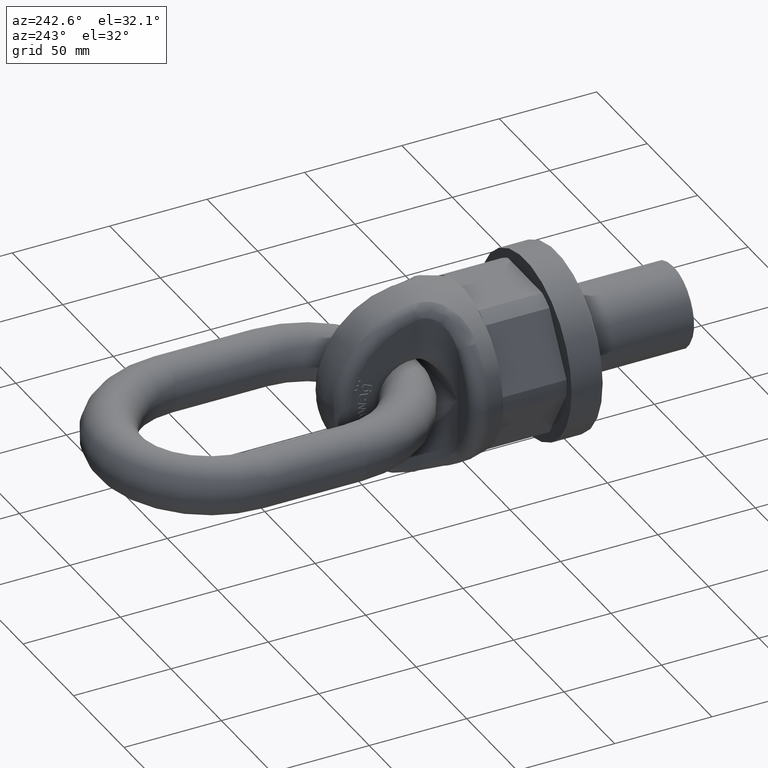
[diagram: clean part render]
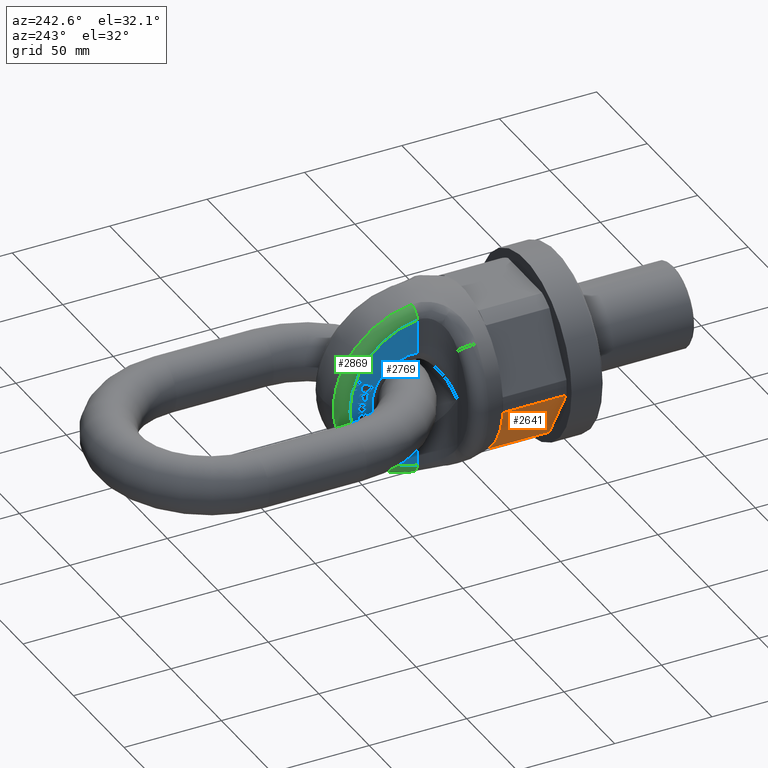
[diagram: same view with three faces highlighted in distinct colors, each labeled with its STEP entity id]
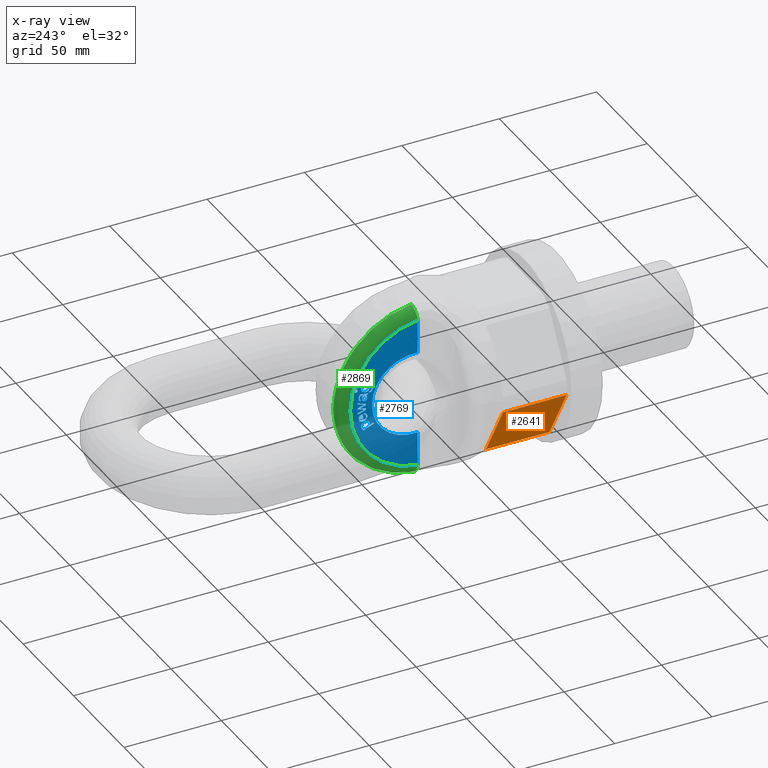
[diagram: x-ray of the same camera — body ghosted, the three highlighted faces saturated]
A machine part, auxiliary view with three faces highlighted in distinct colors.
The next image is the same camera in x-ray (body ghosted, the three faces saturated) — at least one of them is partly hidden behind the body in this view.
Their STEP definitions:

[orange] entity #2641 — the highlighted planar face has unit normal (-0.866, 0, -0.5).
#1799=FACE_OUTER_BOUND('',#3064,.T.);
#2036=LINE('',#6582,#2292);
#2042=LINE('',#6603,#2298);
#2043=LINE('',#6605,#2299);
#2044=LINE('',#6607,#2300);
#2292=VECTOR('',#5820,1.);
#2298=VECTOR('',#5840,1.);
#2299=VECTOR('',#5841,1.);
#2300=VECTOR('',#5842,1.);
#2641=ADVANCED_FACE('',(#1799),#2883,.T.);
#2883=PLANE('',#5610);
#3064=EDGE_LOOP('',(#3364,#3365,#3366,#3367));
#3364=ORIENTED_EDGE('',*,*,#4952,.F.);
#3365=ORIENTED_EDGE('',*,*,#4942,.T.);
#3366=ORIENTED_EDGE('',*,*,#4953,.F.);
#3367=ORIENTED_EDGE('',*,*,#4954,.T.);
#4544=VERTEX_POINT('',#6581);
#4545=VERTEX_POINT('',#6583);
#4553=VERTEX_POINT('',#6604);
#4554=VERTEX_POINT('',#6606);
#4942=EDGE_CURVE('',#4545,#4544,#2036,.T.);
#4952=EDGE_CURVE('',#4545,#4553,#2042,.T.);
#4953=EDGE_CURVE('',#4554,#4544,#2043,.T.);
#4954=EDGE_CURVE('',#4554,#4553,#2044,.T.);
#5610=AXIS2_PLACEMENT_3D('',#6608,#5843,#5844);
#5820=DIRECTION('',(-0.499999999999999,-2.40555621261087E-17,0.866025403784439));
#5840=DIRECTION('',(-2.4492935982947E-17,1.,0.));
#5841=DIRECTION('',(2.4492935982947E-17,-1.,0.));
#5842=DIRECTION('',(0.499999999999999,0.,-0.866025403784439));
#5843=DIRECTION('',(-0.866025403784439,0.,-0.499999999999999));
#5844=DIRECTION('',(-0.499999999999999,0.,0.866025403784439));
#6581=CARTESIAN_POINT('',(-40.9307959284594,16.3333333333333,-4.10578185767495));
#6582=CARTESIAN_POINT('',(-20.9759526419165,16.3333333333333,-38.668584287042));
#6583=CARTESIAN_POINT('',(-24.0211093553735,16.3333333333333,-33.394218142325));
#6603=CARTESIAN_POINT('',(-24.0211093553735,2.07083935363145E-16,-33.394218142325));
#6604=CARTESIAN_POINT('',(-24.0211093553735,49.,-33.394218142325));
#6605=CARTESIAN_POINT('',(-40.9307959284594,-2.07083935363145E-16,-4.10578185767495));
#6606=CARTESIAN_POINT('',(-40.9307959284594,49.,-4.10578185767492));
#6607=CARTESIAN_POINT('',(-43.3012701892219,49.,0.));
#6608=CARTESIAN_POINT('',(-43.3012701892219,49.,0.));

[blue] entity #2769 — the highlighted planar face has unit normal (-1, -0, -0).
#497=B_SPLINE_CURVE_WITH_KNOTS('',3,(#8258,#8259,#8260,#8261,#8262,#8263),
 .UNSPECIFIED.,.F.,.F.,(4,2,4),(0.,0.670501232539027,1.),.UNSPECIFIED.);
#498=B_SPLINE_CURVE_WITH_KNOTS('',3,(#8265,#8266,#8267,#8268),
 .UNSPECIFIED.,.F.,.F.,(4,4),(0.,1.),.UNSPECIFIED.);
#499=B_SPLINE_CURVE_WITH_KNOTS('',3,(#8270,#8271,#8272,#8273,#8274,#8275),
 .UNSPECIFIED.,.F.,.F.,(4,2,4),(0.,0.470198675496688,1.),.UNSPECIFIED.);
#500=B_SPLINE_CURVE_WITH_KNOTS('',3,(#8277,#8278,#8279,#8280),
 .UNSPECIFIED.,.F.,.F.,(4,4),(0.,1.),.UNSPECIFIED.);
#501=B_SPLINE_CURVE_WITH_KNOTS('',3,(#8284,#8285,#8286,#8287),
 .UNSPECIFIED.,.F.,.F.,(4,4),(0.,1.),.UNSPECIFIED.);
#502=B_SPLINE_CURVE_WITH_KNOTS('',3,(#8289,#8290,#8291,#8292,#8293,#8294),
 .UNSPECIFIED.,.F.,.F.,(4,2,4),(0.,0.444196428571434,1.),.UNSPECIFIED.);
#503=B_SPLINE_CURVE_WITH_KNOTS('',3,(#8296,#8297,#8298,#8299,#8300,#8301),
 .UNSPECIFIED.,.F.,.F.,(4,2,4),(0.,0.500000000000002,1.),.UNSPECIFIED.);
#504=B_SPLINE_CURVE_WITH_KNOTS('',3,(#8303,#8304,#8305,#8306,#8307,#8308,
#8309,#8310,#8311,#8312,#8313,#8314,#8315,#8316),.UNSPECIFIED.,.F.,.F.,
(4,2,2,2,2,2,4),(0.,0.149537296690975,0.323681996634893,0.497826696578807,
0.672812675266412,0.847798653954013,1.),.UNSPECIFIED.);
#505=B_SPLINE_CURVE_WITH_KNOTS('',3,(#8321,#8322,#8323,#8324),
 .UNSPECIFIED.,.F.,.F.,(4,4),(0.,1.),.UNSPECIFIED.);
#506=B_SPLINE_CURVE_WITH_KNOTS('',3,(#8329,#8330,#8331,#8332),
 .UNSPECIFIED.,.F.,.F.,(4,4),(0.,1.),.UNSPECIFIED.);
#507=B_SPLINE_CURVE_WITH_KNOTS('',3,(#8334,#8335,#8336,#8337,#8338,#8339),
 .UNSPECIFIED.,.F.,.F.,(4,2,4),(0.,0.565320665083134,1.),.UNSPECIFIED.);
#508=B_SPLINE_CURVE_WITH_KNOTS('',3,(#8341,#8342,#8343,#8344),
 .UNSPECIFIED.,.F.,.F.,(4,4),(0.,1.),.UNSPECIFIED.);
#509=B_SPLINE_CURVE_WITH_KNOTS('',3,(#8348,#8349,#8350,#8351),
 .UNSPECIFIED.,.F.,.F.,(4,4),(0.,1.),.UNSPECIFIED.);
#510=B_SPLINE_CURVE_WITH_KNOTS('',3,(#8353,#8354,#8355,#8356,#8357,#8358),
 .UNSPECIFIED.,.F.,.F.,(4,2,4),(0.,0.429530201342282,1.),.UNSPECIFIED.);
#511=B_SPLINE_CURVE_WITH_KNOTS('',3,(#8360,#8361,#8362,#8363,#8364,#8365,
#8366,#8367,#8368,#8369,#8370,#8371),.UNSPECIFIED.,.F.,.F.,(4,2,2,2,2,4),
(0.,0.253866185683641,0.504362466247586,0.754858746811531,0.877429373405765,
1.),.UNSPECIFIED.);
#512=B_SPLINE_CURVE_WITH_KNOTS('',3,(#8395,#8396,#8397,#8398),
 .UNSPECIFIED.,.F.,.F.,(4,4),(0.,1.),.UNSPECIFIED.);
#513=B_SPLINE_CURVE_WITH_KNOTS('',3,(#8400,#8401,#8402,#8403),
 .UNSPECIFIED.,.F.,.F.,(4,4),(0.,1.),.UNSPECIFIED.);
#514=B_SPLINE_CURVE_WITH_KNOTS('',3,(#8425,#8426,#8427,#8428),
 .UNSPECIFIED.,.F.,.F.,(4,4),(0.,1.),.UNSPECIFIED.);
#515=B_SPLINE_CURVE_WITH_KNOTS('',3,(#8433,#8434,#8435,#8436),
 .UNSPECIFIED.,.F.,.F.,(4,4),(0.,1.),.UNSPECIFIED.);
#516=B_SPLINE_CURVE_WITH_KNOTS('',3,(#8441,#8442,#8443,#8444),
 .UNSPECIFIED.,.F.,.F.,(4,4),(0.,1.),.UNSPECIFIED.);
#517=B_SPLINE_CURVE_WITH_KNOTS('',3,(#8446,#8447,#8448,#8449,#8450,#8451,
#8452,#8453,#8454,#8455),.UNSPECIFIED.,.F.,.F.,(4,2,2,2,4),(0.,0.296954694318532,
0.533565653962708,0.771641518085911,1.),.UNSPECIFIED.);
#518=B_SPLINE_CURVE_WITH_KNOTS('',3,(#8457,#8458,#8459,#8460),
 .UNSPECIFIED.,.F.,.F.,(4,4),(0.,1.),.UNSPECIFIED.);
#519=B_SPLINE_CURVE_WITH_KNOTS('',3,(#8464,#8465,#8466,#8467),
 .UNSPECIFIED.,.F.,.F.,(4,4),(0.,1.),.UNSPECIFIED.);
#520=B_SPLINE_CURVE_WITH_KNOTS('',3,(#8469,#8470,#8471,#8472),
 .UNSPECIFIED.,.F.,.F.,(4,4),(0.,1.),.UNSPECIFIED.);
#521=B_SPLINE_CURVE_WITH_KNOTS('',3,(#8474,#8475,#8476,#8477),
 .UNSPECIFIED.,.F.,.F.,(4,4),(0.,1.),.UNSPECIFIED.);
#522=B_SPLINE_CURVE_WITH_KNOTS('',3,(#8479,#8480,#8481,#8482),
 .UNSPECIFIED.,.F.,.F.,(4,4),(0.,1.),.UNSPECIFIED.);
#523=B_SPLINE_CURVE_WITH_KNOTS('',3,(#8484,#8485,#8486,#8487,#8488,#8489),
 .UNSPECIFIED.,.F.,.F.,(4,2,4),(0.,0.440217391304352,1.),.UNSPECIFIED.);
#524=B_SPLINE_CURVE_WITH_KNOTS('',3,(#8491,#8492,#8493,#8494),
 .UNSPECIFIED.,.F.,.F.,(4,4),(0.,1.),.UNSPECIFIED.);
#525=B_SPLINE_CURVE_WITH_KNOTS('',3,(#8498,#8499,#8500,#8501),
 .UNSPECIFIED.,.F.,.F.,(4,4),(0.,1.),.UNSPECIFIED.);
#526=B_SPLINE_CURVE_WITH_KNOTS('',3,(#8503,#8504,#8505,#8506,#8507,#8508),
 .UNSPECIFIED.,.F.,.F.,(4,2,4),(0.,0.52387640449438,1.),.UNSPECIFIED.);
#527=B_SPLINE_CURVE_WITH_KNOTS('',3,(#8510,#8511,#8512,#8513),
 .UNSPECIFIED.,.F.,.F.,(4,4),(0.,1.),.UNSPECIFIED.);
#528=B_SPLINE_CURVE_WITH_KNOTS('',3,(#8515,#8516,#8517,#8518,#8519,#8520,
#8521,#8522),.UNSPECIFIED.,.F.,.F.,(4,2,2,4),(0.,0.269230769230754,0.527644230769219,
1.),.UNSPECIFIED.);
#529=B_SPLINE_CURVE_WITH_KNOTS('',3,(#8526,#8527,#8528,#8529),
 .UNSPECIFIED.,.F.,.F.,(4,4),(0.,1.),.UNSPECIFIED.);
#530=B_SPLINE_CURVE_WITH_KNOTS('',3,(#8531,#8532,#8533,#8534),
 .UNSPECIFIED.,.F.,.F.,(4,4),(0.,1.),.UNSPECIFIED.);
#531=B_SPLINE_CURVE_WITH_KNOTS('',3,(#8536,#8537,#8538,#8539,#8540,#8541,
#8542,#8543,#8544,#8545),.UNSPECIFIED.,.F.,.F.,(4,2,2,2,4),(0.,0.245990994549334,
0.507925849856492,0.76986070516365,1.),.UNSPECIFIED.);
#2173=LINE('',#8255,#2475);
#2174=LINE('',#8282,#2476);
#2175=LINE('',#8318,#2477);
#2176=LINE('',#8320,#2478);
#2177=LINE('',#8327,#2479);
#2178=LINE('',#8346,#2480);
#2179=LINE('',#8378,#2481);
#2180=LINE('',#8383,#2482);
#2181=LINE('',#8386,#2483);
#2182=LINE('',#8389,#2484);
#2183=LINE('',#8391,#2485);
#2184=LINE('',#8393,#2486);
#2185=LINE('',#8405,#2487);
#2186=LINE('',#8407,#2488);
#2187=LINE('',#8409,#2489);
#2188=LINE('',#8411,#2490);
#2189=LINE('',#8413,#2491);
#2190=LINE('',#8415,#2492);
#2191=LINE('',#8417,#2493);
#2192=LINE('',#8419,#2494);
#2193=LINE('',#8421,#2495);
#2194=LINE('',#8423,#2496);
#2195=LINE('',#8430,#2497);
#2196=LINE('',#8432,#2498);
#2197=LINE('',#8439,#2499);
#2198=LINE('',#8462,#2500);
#2199=LINE('',#8496,#2501);
#2200=LINE('',#8523,#2502);
#2201=LINE('',#8547,#2503);
#2202=LINE('',#8549,#2504);
#2203=LINE('',#8551,#2505);
#2204=LINE('',#8553,#2506);
#2205=LINE('',#8555,#2507);
#2206=LINE('',#8557,#2508);
#2475=VECTOR('',#6239,1.);
#2476=VECTOR('',#6240,1.);
#2477=VECTOR('',#6241,1.);
#2478=VECTOR('',#6242,1.);
#2479=VECTOR('',#6243,1.);
#2480=VECTOR('',#6244,1.);
#2481=VECTOR('',#6251,1.);
#2482=VECTOR('',#6254,1.);
#2483=VECTOR('',#6257,1.);
#2484=VECTOR('',#6258,1.);
#2485=VECTOR('',#6259,1.);
#2486=VECTOR('',#6260,1.);
#2487=VECTOR('',#6261,1.);
#2488=VECTOR('',#6262,1.);
#2489=VECTOR('',#6263,1.);
#2490=VECTOR('',#6264,1.);
#2491=VECTOR('',#6265,1.);
#2492=VECTOR('',#6266,1.);
#2493=VECTOR('',#6267,1.);
#2494=VECTOR('',#6268,1.);
#2495=VECTOR('',#6269,1.);
#2496=VECTOR('',#6270,1.);
#2497=VECTOR('',#6271,1.);
#2498=VECTOR('',#6272,1.);
#2499=VECTOR('',#6273,1.);
#2500=VECTOR('',#6274,1.);
#2501=VECTOR('',#6275,1.);
#2502=VECTOR('',#6276,1.);
#2503=VECTOR('',#6277,1.);
#2504=VECTOR('',#6278,1.);
#2505=VECTOR('',#6279,1.);
#2506=VECTOR('',#6280,1.);
#2507=VECTOR('',#6281,1.);
#2508=VECTOR('',#6282,1.);
#2769=ADVANCED_FACE('',(#3026,#3027,#3028,#3029,#3030,#3031,#3032,#3033,
#3034),#2938,.T.);
#2938=PLANE('',#5726);
#3026=FACE_BOUND('',#3213,.T.);
#3027=FACE_BOUND('',#3214,.T.);
#3028=FACE_BOUND('',#3215,.T.);
#3029=FACE_BOUND('',#3216,.T.);
#3030=FACE_BOUND('',#3217,.T.);
#3031=FACE_BOUND('',#3218,.T.);
#3032=FACE_BOUND('',#3219,.T.);
#3033=FACE_BOUND('',#3220,.T.);
#3034=FACE_BOUND('',#3221,.T.);
#3213=EDGE_LOOP('',(#3990,#3991,#3992,#3993,#3994,#3995,#3996,#3997,#3998,
#3999,#4000,#4001));
#3214=EDGE_LOOP('',(#4002,#4003,#4004,#4005,#4006,#4007,#4008,#4009,#4010));
#3215=EDGE_LOOP('',(#4011));
#3216=EDGE_LOOP('',(#4012));
#3217=EDGE_LOOP('',(#4013));
#3218=EDGE_LOOP('',(#4014,#4015,#4016,#4017));
#3219=EDGE_LOOP('',(#4018,#4019,#4020,#4021,#4022,#4023,#4024,#4025,#4026,
#4027,#4028,#4029,#4030,#4031,#4032,#4033,#4034,#4035,#4036));
#3220=EDGE_LOOP('',(#4037,#4038,#4039,#4040,#4041,#4042,#4043,#4044,#4045,
#4046,#4047,#4048,#4049,#4050,#4051,#4052,#4053));
#3221=EDGE_LOOP('',(#4054,#4055,#4056,#4057,#4058,#4059,#4060,#4061,#4062,
#4063));
#3990=ORIENTED_EDGE('',*,*,#5261,.T.);
#3991=ORIENTED_EDGE('',*,*,#5262,.T.);
#3992=ORIENTED_EDGE('',*,*,#5263,.T.);
#3993=ORIENTED_EDGE('',*,*,#5264,.T.);
#3994=ORIENTED_EDGE('',*,*,#5265,.T.);
#3995=ORIENTED_EDGE('',*,*,#5266,.T.);
#3996=ORIENTED_EDGE('',*,*,#5267,.T.);
#3997=ORIENTED_EDGE('',*,*,#5268,.T.);
#3998=ORIENTED_EDGE('',*,*,#5269,.T.);
#3999=ORIENTED_EDGE('',*,*,#5270,.T.);
#4000=ORIENTED_EDGE('',*,*,#5271,.T.);
#4001=ORIENTED_EDGE('',*,*,#5272,.T.);
#4002=ORIENTED_EDGE('',*,*,#5273,.T.);
#4003=ORIENTED_EDGE('',*,*,#5274,.T.);
#4004=ORIENTED_EDGE('',*,*,#5275,.T.);
#4005=ORIENTED_EDGE('',*,*,#5276,.T.);
#4006=ORIENTED_EDGE('',*,*,#5277,.T.);
#4007=ORIENTED_EDGE('',*,*,#5278,.T.);
#4008=ORIENTED_EDGE('',*,*,#5279,.T.);
#4009=ORIENTED_EDGE('',*,*,#5280,.T.);
#4010=ORIENTED_EDGE('',*,*,#5281,.T.);
#4011=ORIENTED_EDGE('',*,*,#5282,.T.);
#4012=ORIENTED_EDGE('',*,*,#5283,.T.);
#4013=ORIENTED_EDGE('',*,*,#5284,.T.);
#4014=ORIENTED_EDGE('',*,*,#5285,.T.);
#4015=ORIENTED_EDGE('',*,*,#5286,.T.);
#4016=ORIENTED_EDGE('',*,*,#5287,.T.);
#4017=ORIENTED_EDGE('',*,*,#5288,.T.);
#4018=ORIENTED_EDGE('',*,*,#5289,.T.);
#4019=ORIENTED_EDGE('',*,*,#5290,.T.);
#4020=ORIENTED_EDGE('',*,*,#5291,.T.);
#4021=ORIENTED_EDGE('',*,*,#5292,.T.);
#4022=ORIENTED_EDGE('',*,*,#5293,.T.);
#4023=ORIENTED_EDGE('',*,*,#5294,.T.);
#4024=ORIENTED_EDGE('',*,*,#5295,.T.);
#4025=ORIENTED_EDGE('',*,*,#5296,.T.);
#4026=ORIENTED_EDGE('',*,*,#5297,.T.);
#4027=ORIENTED_EDGE('',*,*,#5298,.T.);
#4028=ORIENTED_EDGE('',*,*,#5299,.T.);
#4029=ORIENTED_EDGE('',*,*,#5300,.T.);
#4030=ORIENTED_EDGE('',*,*,#5301,.T.);
#4031=ORIENTED_EDGE('',*,*,#5302,.T.);
#4032=ORIENTED_EDGE('',*,*,#5303,.T.);
#4033=ORIENTED_EDGE('',*,*,#5304,.T.);
#4034=ORIENTED_EDGE('',*,*,#5305,.T.);
#4035=ORIENTED_EDGE('',*,*,#5306,.T.);
#4036=ORIENTED_EDGE('',*,*,#5307,.T.);
#4037=ORIENTED_EDGE('',*,*,#5308,.T.);
#4038=ORIENTED_EDGE('',*,*,#5309,.T.);
#4039=ORIENTED_EDGE('',*,*,#5310,.T.);
#4040=ORIENTED_EDGE('',*,*,#5311,.T.);
#4041=ORIENTED_EDGE('',*,*,#5312,.T.);
#4042=ORIENTED_EDGE('',*,*,#5313,.T.);
#4043=ORIENTED_EDGE('',*,*,#5314,.T.);
#4044=ORIENTED_EDGE('',*,*,#5315,.T.);
#4045=ORIENTED_EDGE('',*,*,#5316,.T.);
#4046=ORIENTED_EDGE('',*,*,#5317,.T.);
#4047=ORIENTED_EDGE('',*,*,#5318,.T.);
#4048=ORIENTED_EDGE('',*,*,#5319,.T.);
#4049=ORIENTED_EDGE('',*,*,#5320,.T.);
#4050=ORIENTED_EDGE('',*,*,#5321,.T.);
#4051=ORIENTED_EDGE('',*,*,#5322,.T.);
#4052=ORIENTED_EDGE('',*,*,#5323,.T.);
#4053=ORIENTED_EDGE('',*,*,#5324,.T.);
#4054=ORIENTED_EDGE('',*,*,#5325,.T.);
#4055=ORIENTED_EDGE('',*,*,#5326,.T.);
#4056=ORIENTED_EDGE('',*,*,#5327,.T.);
#4057=ORIENTED_EDGE('',*,*,#5328,.T.);
#4058=ORIENTED_EDGE('',*,*,#5329,.T.);
#4059=ORIENTED_EDGE('',*,*,#5330,.T.);
#4060=ORIENTED_EDGE('',*,*,#5331,.T.);
#4061=ORIENTED_EDGE('',*,*,#5332,.T.);
#4062=ORIENTED_EDGE('',*,*,#5333,.T.);
#4063=ORIENTED_EDGE('',*,*,#5334,.T.);
#4757=VERTEX_POINT('',#8256);
#4758=VERTEX_POINT('',#8257);
#4759=VERTEX_POINT('',#8264);
#4760=VERTEX_POINT('',#8269);
#4761=VERTEX_POINT('',#8276);
#4762=VERTEX_POINT('',#8281);
#4763=VERTEX_POINT('',#8283);
#4764=VERTEX_POINT('',#8288);
#4765=VERTEX_POINT('',#8295);
#4766=VERTEX_POINT('',#8302);
#4767=VERTEX_POINT('',#8317);
#4768=VERTEX_POINT('',#8319);
#4769=VERTEX_POINT('',#8325);
#4770=VERTEX_POINT('',#8326);
#4771=VERTEX_POINT('',#8328);
#4772=VERTEX_POINT('',#8333);
#4773=VERTEX_POINT('',#8340);
#4774=VERTEX_POINT('',#8345);
#4775=VERTEX_POINT('',#8347);
#4776=VERTEX_POINT('',#8352);
#4777=VERTEX_POINT('',#8359);
#4778=VERTEX_POINT('',#8373);
#4779=VERTEX_POINT('',#8375);
#4780=VERTEX_POINT('',#8377);
#4781=VERTEX_POINT('',#8379);
#4782=VERTEX_POINT('',#8380);
#4783=VERTEX_POINT('',#8382);
#4784=VERTEX_POINT('',#8384);
#4785=VERTEX_POINT('',#8387);
#4786=VERTEX_POINT('',#8388);
#4787=VERTEX_POINT('',#8390);
#4788=VERTEX_POINT('',#8392);
#4789=VERTEX_POINT('',#8394);
#4790=VERTEX_POINT('',#8399);
#4791=VERTEX_POINT('',#8404);
#4792=VERTEX_POINT('',#8406);
#4793=VERTEX_POINT('',#8408);
#4794=VERTEX_POINT('',#8410);
#4795=VERTEX_POINT('',#8412);
#4796=VERTEX_POINT('',#8414);
#4797=VERTEX_POINT('',#8416);
#4798=VERTEX_POINT('',#8418);
#4799=VERTEX_POINT('',#8420);
#4800=VERTEX_POINT('',#8422);
#4801=VERTEX_POINT('',#8424);
#4802=VERTEX_POINT('',#8429);
#4803=VERTEX_POINT('',#8431);
#4804=VERTEX_POINT('',#8437);
#4805=VERTEX_POINT('',#8438);
#4806=VERTEX_POINT('',#8440);
#4807=VERTEX_POINT('',#8445);
#4808=VERTEX_POINT('',#8456);
#4809=VERTEX_POINT('',#8461);
#4810=VERTEX_POINT('',#8463);
#4811=VERTEX_POINT('',#8468);
#4812=VERTEX_POINT('',#8473);
#4813=VERTEX_POINT('',#8478);
#4814=VERTEX_POINT('',#8483);
#4815=VERTEX_POINT('',#8490);
#4816=VERTEX_POINT('',#8495);
#4817=VERTEX_POINT('',#8497);
#4818=VERTEX_POINT('',#8502);
#4819=VERTEX_POINT('',#8509);
#4820=VERTEX_POINT('',#8514);
#4821=VERTEX_POINT('',#8524);
#4822=VERTEX_POINT('',#8525);
#4823=VERTEX_POINT('',#8530);
#4824=VERTEX_POINT('',#8535);
#4825=VERTEX_POINT('',#8546);
#4826=VERTEX_POINT('',#8548);
#4827=VERTEX_POINT('',#8550);
#4828=VERTEX_POINT('',#8552);
#4829=VERTEX_POINT('',#8554);
#4830=VERTEX_POINT('',#8556);
#5261=EDGE_CURVE('',#4757,#4758,#2173,.T.);
#5262=EDGE_CURVE('',#4758,#4759,#497,.T.);
#5263=EDGE_CURVE('',#4759,#4760,#498,.T.);
#5264=EDGE_CURVE('',#4760,#4761,#499,.T.);
#5265=EDGE_CURVE('',#4761,#4762,#500,.T.);
#5266=EDGE_CURVE('',#4762,#4763,#2174,.T.);
#5267=EDGE_CURVE('',#4763,#4764,#501,.T.);
#5268=EDGE_CURVE('',#4764,#4765,#502,.T.);
#5269=EDGE_CURVE('',#4765,#4766,#503,.T.);
#5270=EDGE_CURVE('',#4766,#4767,#504,.T.);
#5271=EDGE_CURVE('',#4767,#4768,#2175,.T.);
#5272=EDGE_CURVE('',#4768,#4757,#2176,.T.);
#5273=EDGE_CURVE('',#4769,#4770,#505,.T.);
#5274=EDGE_CURVE('',#4770,#4771,#2177,.T.);
#5275=EDGE_CURVE('',#4771,#4772,#506,.T.);
#5276=EDGE_CURVE('',#4772,#4773,#507,.T.);
#5277=EDGE_CURVE('',#4773,#4774,#508,.T.);
#5278=EDGE_CURVE('',#4774,#4775,#2178,.T.);
#5279=EDGE_CURVE('',#4775,#4776,#509,.T.);
#5280=EDGE_CURVE('',#4776,#4777,#510,.T.);
#5281=EDGE_CURVE('',#4777,#4769,#511,.T.);
#5282=EDGE_CURVE('',#4778,#4778,#5574,.T.);
#5283=EDGE_CURVE('',#4779,#4779,#5575,.T.);
#5284=EDGE_CURVE('',#4780,#4780,#5576,.T.);
#5285=EDGE_CURVE('',#4781,#4782,#2179,.T.);
#5286=EDGE_CURVE('',#4782,#4783,#5577,.T.);
#5287=EDGE_CURVE('',#4783,#4784,#2180,.T.);
#5288=EDGE_CURVE('',#4784,#4781,#5578,.T.);
#5289=EDGE_CURVE('',#4785,#4786,#2181,.T.);
#5290=EDGE_CURVE('',#4786,#4787,#2182,.T.);
#5291=EDGE_CURVE('',#4787,#4788,#2183,.T.);
#5292=EDGE_CURVE('',#4788,#4789,#2184,.T.);
#5293=EDGE_CURVE('',#4789,#4790,#512,.T.);
#5294=EDGE_CURVE('',#4790,#4791,#513,.T.);
#5295=EDGE_CURVE('',#4791,#4792,#2185,.T.);
#5296=EDGE_CURVE('',#4792,#4793,#2186,.T.);
#5297=EDGE_CURVE('',#4793,#4794,#2187,.T.);
#5298=EDGE_CURVE('',#4794,#4795,#2188,.T.);
#5299=EDGE_CURVE('',#4795,#4796,#2189,.T.);
#5300=EDGE_CURVE('',#4796,#4797,#2190,.T.);
#5301=EDGE_CURVE('',#4797,#4798,#2191,.T.);
#5302=EDGE_CURVE('',#4798,#4799,#2192,.T.);
#5303=EDGE_CURVE('',#4799,#4800,#2193,.T.);
#5304=EDGE_CURVE('',#4800,#4801,#2194,.T.);
#5305=EDGE_CURVE('',#4801,#4802,#514,.T.);
#5306=EDGE_CURVE('',#4802,#4803,#2195,.T.);
#5307=EDGE_CURVE('',#4803,#4785,#2196,.T.);
#5308=EDGE_CURVE('',#4804,#4805,#515,.T.);
#5309=EDGE_CURVE('',#4805,#4806,#2197,.T.);
#5310=EDGE_CURVE('',#4806,#4807,#516,.T.);
#5311=EDGE_CURVE('',#4807,#4808,#517,.T.);
#5312=EDGE_CURVE('',#4808,#4809,#518,.T.);
#5313=EDGE_CURVE('',#4809,#4810,#2198,.T.);
#5314=EDGE_CURVE('',#4810,#4811,#519,.T.);
#5315=EDGE_CURVE('',#4811,#4812,#520,.T.);
#5316=EDGE_CURVE('',#4812,#4813,#521,.T.);
#5317=EDGE_CURVE('',#4813,#4814,#522,.T.);
#5318=EDGE_CURVE('',#4814,#4815,#523,.T.);
#5319=EDGE_CURVE('',#4815,#4816,#524,.T.);
#5320=EDGE_CURVE('',#4816,#4817,#2199,.T.);
#5321=EDGE_CURVE('',#4817,#4818,#525,.T.);
#5322=EDGE_CURVE('',#4818,#4819,#526,.T.);
#5323=EDGE_CURVE('',#4819,#4820,#527,.T.);
#5324=EDGE_CURVE('',#4820,#4804,#528,.T.);
#5325=EDGE_CURVE('',#4821,#4822,#2200,.T.);
#5326=EDGE_CURVE('',#4822,#4823,#529,.T.);
#5327=EDGE_CURVE('',#4823,#4824,#530,.T.);
#5328=EDGE_CURVE('',#4824,#4825,#531,.T.);
#5329=EDGE_CURVE('',#4825,#4826,#2201,.T.);
#5330=EDGE_CURVE('',#4826,#4827,#2202,.T.);
#5331=EDGE_CURVE('',#4827,#4828,#2203,.T.);
#5332=EDGE_CURVE('',#4828,#4829,#2204,.T.);
#5333=EDGE_CURVE('',#4829,#4830,#2205,.T.);
#5334=EDGE_CURVE('',#4830,#4821,#2206,.T.);
#5574=CIRCLE('',#5721,0.9);
#5575=CIRCLE('',#5722,0.9);
#5576=CIRCLE('',#5723,0.9);
#5577=CIRCLE('',#5724,21.5);
#5578=CIRCLE('',#5725,39.2905841137543);
#5721=AXIS2_PLACEMENT_3D('',#8372,#6245,#6246);
#5722=AXIS2_PLACEMENT_3D('',#8374,#6247,#6248);
#5723=AXIS2_PLACEMENT_3D('',#8376,#6249,#6250);
#5724=AXIS2_PLACEMENT_3D('',#8381,#6252,#6253);
#5725=AXIS2_PLACEMENT_3D('',#8385,#6255,#6256);
#5726=AXIS2_PLACEMENT_3D('',#8558,#6283,#6284);
#6239=DIRECTION('',(-2.04206835697261E-15,-0.374817493438867,0.92709861752254));
#6240=DIRECTION('',(-1.83879969671177E-15,-0.509752445022502,0.860321128877805));
#6241=DIRECTION('',(-2.0420683569714E-15,-0.374817493439802,0.927098617522162));
#6242=DIRECTION('',(-1.199815874129E-15,0.927098617522554,0.374817493438833));
#6243=DIRECTION('',(2.36431051790618E-15,-0.204756552871418,-0.97881293108347));
#6244=DIRECTION('',(-2.36393698069602E-15,0.0851024861387772,0.996372202970857));
#6245=DIRECTION('',(1.,3.46944695195361E-16,2.34291072916505E-15));
#6246=DIRECTION('',(0.,0.999999999999997,0.));
#6247=DIRECTION('',(1.,3.46944695195361E-16,2.34291072916505E-15));
#6248=DIRECTION('',(0.,0.999999999999997,0.));
#6249=DIRECTION('',(1.,3.46944695195361E-16,2.34291072916505E-15));
#6250=DIRECTION('',(0.,0.999999999999997,0.));
#6251=DIRECTION('',(-2.34291072916505E-15,0.,1.));
#6252=DIRECTION('',(1.,3.46944695195361E-16,2.34291072916505E-15));
#6253=DIRECTION('',(-3.22739251344522E-16,1.,-8.59950114703138E-31));
#6254=DIRECTION('',(-2.34291072916505E-15,0.,1.));
#6255=DIRECTION('',(-1.,-3.46944695195361E-16,-2.34291072916505E-15));
#6256=DIRECTION('',(-3.53208997036934E-16,1.,-7.84281522030326E-31));
#6257=DIRECTION('',(-2.34308423745261E-15,0.000500950926351836,0.999999874524077));
#6258=DIRECTION('',(1.04225222396812E-15,-0.952745927266721,-0.303768329614324));
#6259=DIRECTION('',(2.34308423745262E-15,-0.000500950926378467,-0.999999874524077));
#6260=DIRECTION('',(2.73216426703947E-16,0.965711053542926,-0.259619261737283));
#6261=DIRECTION('',(2.34308423745302E-15,-0.00050095092753338,-0.999999874524076));
#6262=DIRECTION('',(9.30402567665178E-16,-0.967234897668755,-0.25388314778991));
#6263=DIRECTION('',(2.34308423745262E-15,-0.000500950926372482,-0.999999874524077));
#6264=DIRECTION('',(3.68964513782021E-16,0.954316064382684,-0.298799011479533));
#6265=DIRECTION('',(-2.34308423745262E-15,0.000500950926378467,0.999999874524077));
#6266=DIRECTION('',(-2.98395113711339E-16,-0.962875432123419,0.269946109831463));
#6267=DIRECTION('',(-9.15460953395933E-16,0.96895131162305,0.247251604047317));
#6268=DIRECTION('',(-9.56708173306958E-16,0.96408975248355,0.265576635185039));
#6269=DIRECTION('',(-2.34308423745263E-15,0.000500950926398549,0.999999874524077));
#6270=DIRECTION('',(-2.58449298279194E-16,-0.967321030989135,0.253554773187405));
#6271=DIRECTION('',(-2.34308423745274E-15,0.00050095092672557,0.999999874524077));
#6272=DIRECTION('',(-1.00432266710359E-15,0.95798965716578,0.286802748876978));
#6273=DIRECTION('',(2.22305188131139E-15,0.203775775737301,-0.979017585757611));
#6274=DIRECTION('',(-2.3182417610692E-15,-0.0592426172801564,0.998243613702486));
#6275=DIRECTION('',(2.10150650587243E-15,0.326265311530174,-0.945278237606324));
#6276=DIRECTION('',(-2.3015915132319E-15,0.375746167022102,0.926722621914561));
#6277=DIRECTION('',(2.30159151323139E-15,-0.375746167022945,-0.926722621914219));
#6278=DIRECTION('',(-5.58818228569177E-16,-0.926722621914358,0.375746167022603));
#6279=DIRECTION('',(2.30159151323159E-15,-0.37574616702261,-0.926722621914356));
#6280=DIRECTION('',(5.5881822856917E-16,0.926722621914359,-0.375746167022601));
#6281=DIRECTION('',(-2.30159151323158E-15,0.375746167022622,0.92672262191435));
#6282=DIRECTION('',(-5.58818228569165E-16,-0.92672262191436,0.375746167022599));
#6283=DIRECTION('',(-1.,-3.46944695195361E-16,-2.34291072916505E-15));
#6284=DIRECTION('',(-3.46944695195361E-16,1.,0.));
#8255=CARTESIAN_POINT('',(-13.4999999999999,130.372061157971,-46.4066705185968));
#8256=CARTESIAN_POINT('',(-13.5,106.81728875282,11.8552764693058));
#8257=CARTESIAN_POINT('',(-13.5,106.557962951412,12.4967102235519));
#8258=CARTESIAN_POINT('',(-13.5,106.557962951412,12.4967102235519));
#8259=CARTESIAN_POINT('',(-13.5,105.396777269296,12.0272534704497));
#8260=CARTESIAN_POINT('',(-13.5,104.23559158718,11.5577967173475));
#8261=CARTESIAN_POINT('',(-13.5,102.503774215691,10.857638790233));
#8262=CARTESIAN_POINT('',(-13.5,102.100283137163,10.6271271267037));
#8263=CARTESIAN_POINT('',(-13.5,101.863932669478,10.3968049736574));
#8264=CARTESIAN_POINT('',(-13.5,101.863932669478,10.3968049736574));
#8265=CARTESIAN_POINT('',(-13.5,101.863932669478,10.3968049736574));
#8266=CARTESIAN_POINT('',(-13.5,101.629005223463,10.1670581352594));
#8267=CARTESIAN_POINT('',(-13.5,101.493570020937,9.87140544270638));
#8268=CARTESIAN_POINT('',(-13.5,101.456456290789,9.51274275944859));
#8269=CARTESIAN_POINT('',(-13.5,101.456456290789,9.51274275944859));
#8270=CARTESIAN_POINT('',(-13.5,101.456456290789,9.51274275944859));
#8271=CARTESIAN_POINT('',(-13.5,101.418504924528,9.15205682981723));
#8272=CARTESIAN_POINT('',(-13.5,101.483072808438,8.76711918321554));
#8273=CARTESIAN_POINT('',(-13.5,101.836645684398,7.89256842121861));
#8274=CARTESIAN_POINT('',(-13.5,102.093978166428,7.54681799063784));
#8275=CARTESIAN_POINT('',(-13.5,102.422157388609,7.32067852790123));
#8276=CARTESIAN_POINT('',(-13.5,102.422157388609,7.32067852790123));
#8277=CARTESIAN_POINT('',(-13.5,102.422157388609,7.32067852790123));
#8278=CARTESIAN_POINT('',(-13.5,102.749498974676,7.09251581879105));
#8279=CARTESIAN_POINT('',(-13.5,103.143113892573,7.07308336900348));
#8280=CARTESIAN_POINT('',(-13.5,103.602749891744,7.25891000043978));
#8281=CARTESIAN_POINT('',(-13.5,103.602749891744,7.25891000043978));
#8282=CARTESIAN_POINT('',(-13.4999999999999,133.237606451551,-42.7565308250357));
#8283=CARTESIAN_POINT('',(-13.5,103.227502662356,7.89222352967907));
#8284=CARTESIAN_POINT('',(-13.5,103.227502662356,7.89222352967907));
#8285=CARTESIAN_POINT('',(-13.5,103.004935493624,7.83256441811893));
#8286=CARTESIAN_POINT('',(-13.5,102.808677776625,7.85934887618217));
#8287=CARTESIAN_POINT('',(-13.5,102.639314896914,7.97112897214361));
#8288=CARTESIAN_POINT('',(-13.5,102.639314896914,7.97112897214361));
#8289=CARTESIAN_POINT('',(-13.5,102.639314896914,7.97112897214361));
#8290=CARTESIAN_POINT('',(-13.5,102.470789653317,8.08493231447864));
#8291=CARTESIAN_POINT('',(-13.5,102.327150839782,8.28460391178863));
#8292=CARTESIAN_POINT('',(-13.5,102.064898110593,8.93327732466052));
#8293=CARTESIAN_POINT('',(-13.5,102.030932044492,9.22614194570862));
#8294=CARTESIAN_POINT('',(-13.5,102.106752508565,9.45220880531661));
#8295=CARTESIAN_POINT('',(-13.5,102.106752508565,9.45220880531661));
#8296=CARTESIAN_POINT('',(-13.5,102.106752508565,9.45220880531661));
#8297=CARTESIAN_POINT('',(-13.5,102.184581379863,9.67740304784784));
#8298=CARTESIAN_POINT('',(-13.5,102.31805067069,9.85096990208861));
#8299=CARTESIAN_POINT('',(-13.5,102.70313294919,10.0942542291326));
#8300=CARTESIAN_POINT('',(-13.5,102.98155029248,10.22871558589));
#8301=CARTESIAN_POINT('',(-13.5,103.34584383981,10.3759961358828));
#8302=CARTESIAN_POINT('',(-13.5,103.34584383981,10.3759961358828));
#8303=CARTESIAN_POINT('',(-13.5,103.34584383981,10.3759961358828));
#8304=CARTESIAN_POINT('',(-13.5,103.114694661529,9.93214830424387));
#8305=CARTESIAN_POINT('',(-13.5,103.093619397498,9.48057855877229));
#8306=CARTESIAN_POINT('',(-13.5,103.494023117957,8.49019325876252));
#8307=CARTESIAN_POINT('',(-13.5,103.860828189619,8.13984826029872));
#8308=CARTESIAN_POINT('',(-13.5,104.896033935773,7.80704187961196));
#8309=CARTESIAN_POINT('',(-13.5,105.44910816507,7.84365438252364));
#8310=CARTESIAN_POINT('',(-13.5,106.630216150556,8.3211655407036));
#8311=CARTESIAN_POINT('',(-13.5,107.060783029716,8.67717635001906));
#8312=CARTESIAN_POINT('',(-13.5,107.595079703084,9.62430303395762));
#8313=CARTESIAN_POINT('',(-13.5,107.617264048243,10.1386512876347));
#8314=CARTESIAN_POINT('',(-13.5,107.196957218872,11.1782662662999));
#8315=CARTESIAN_POINT('',(-13.5,106.847047443898,11.4950115326567));
#8316=CARTESIAN_POINT('',(-13.5,106.34132364806,11.6443175545182));
#8317=CARTESIAN_POINT('',(-13.5,106.34132364806,11.6443175545182));
#8318=CARTESIAN_POINT('',(-13.4999999999999,129.889656812147,-46.601702184374));
#8319=CARTESIAN_POINT('',(-13.5,106.334884406941,11.660244803495));
#8320=CARTESIAN_POINT('',(-13.5,96.4452275948507,7.66194698790384));
#8321=CARTESIAN_POINT('',(-13.5,108.280943896968,-4.0475286690511));
#8322=CARTESIAN_POINT('',(-13.5,107.997454908028,-3.77601196076489));
#8323=CARTESIAN_POINT('',(-13.5,107.517079338275,-3.56861803299261));
#8324=CARTESIAN_POINT('',(-13.5,106.840999800304,-3.42718986907528));
#8325=CARTESIAN_POINT('',(-13.5,108.280943896968,-4.0475286690511));
#8326=CARTESIAN_POINT('',(-13.5,106.840999800304,-3.42718986907528));
#8327=CARTESIAN_POINT('',(-13.4999999999999,97.9383967980231,-45.9849630721025));
#8328=CARTESIAN_POINT('',(-13.5,106.163052679194,-6.66803075757186));
#8329=CARTESIAN_POINT('',(-13.5,106.163052679194,-6.66803075757186));
#8330=CARTESIAN_POINT('',(-13.5,105.699197528119,-6.53908564180095));
#8331=CARTESIAN_POINT('',(-13.5,105.36858516114,-6.32791740314485));
#8332=CARTESIAN_POINT('',(-13.5,105.171535364634,-6.03299734307125));
#8333=CARTESIAN_POINT('',(-13.5,105.171535364634,-6.03299734307125));
#8334=CARTESIAN_POINT('',(-13.5,105.171535364634,-6.03299734307125));
#8335=CARTESIAN_POINT('',(-13.5,104.972983169155,-5.73776299818895));
#8336=CARTESIAN_POINT('',(-13.5,104.913423942546,-5.40778063594549));
#8337=CARTESIAN_POINT('',(-13.5,105.048054007634,-4.76419855384311));
#8338=CARTESIAN_POINT('',(-13.5,105.169416260545,-4.54386465068526));
#8339=CARTESIAN_POINT('',(-13.5,105.354802471809,-4.38479165912326));
#8340=CARTESIAN_POINT('',(-13.5,105.354802471809,-4.38479165912326));
#8341=CARTESIAN_POINT('',(-13.5,105.354802471809,-4.38479165912326));
#8342=CARTESIAN_POINT('',(-13.5,105.540508469451,-4.22418996902894));
#8343=CARTESIAN_POINT('',(-13.5,105.790238425447,-4.12484919053048));
#8344=CARTESIAN_POINT('',(-13.5,106.105814525148,-4.08555490990425));
#8345=CARTESIAN_POINT('',(-13.5,106.105814525148,-4.08555490990425));
#8346=CARTESIAN_POINT('',(-13.4999999999999,102.262307932154,-49.084982129332));
#8347=CARTESIAN_POINT('',(-13.5,106.171822872074,-3.31273516014455));
#8348=CARTESIAN_POINT('',(-13.5,106.171822872074,-3.31273516014455));
#8349=CARTESIAN_POINT('',(-13.5,105.701529865757,-3.3420027393526));
#8350=CARTESIAN_POINT('',(-13.5,105.31497910025,-3.49569305683475));
#8351=CARTESIAN_POINT('',(-13.5,105.009485563985,-3.7716488444413));
#8352=CARTESIAN_POINT('',(-13.5,105.009485563985,-3.7716488444413));
#8353=CARTESIAN_POINT('',(-13.5,105.009485563985,-3.7716488444413));
#8354=CARTESIAN_POINT('',(-13.5,104.702489628746,-4.04729034723915));
#8355=CARTESIAN_POINT('',(-13.5,104.498417146964,-4.43062435547813));
#8356=CARTESIAN_POINT('',(-13.5,104.260176295441,-5.56950476204886));
#8357=CARTESIAN_POINT('',(-13.5,104.349319084509,-6.11788969990736));
#8358=CARTESIAN_POINT('',(-13.5,104.665016272218,-6.56527698420143));
#8359=CARTESIAN_POINT('',(-13.5,104.665016272218,-6.56527698420143));
#8360=CARTESIAN_POINT('',(-13.5,104.665016272218,-6.56527698420143));
#8361=CARTESIAN_POINT('',(-13.5,104.979211060954,-7.01234998368679));
#8362=CARTESIAN_POINT('',(-13.5,105.475690730091,-7.307679199463));
#8363=CARTESIAN_POINT('',(-13.5,106.824845008085,-7.58990695768025));
#8364=CARTESIAN_POINT('',(-13.5,107.405808656242,-7.52634902868359));
#8365=CARTESIAN_POINT('',(-13.5,108.386518566769,-6.99114669371455));
#8366=CARTESIAN_POINT('',(-13.5,108.699922169621,-6.5349478620593));
#8367=CARTESIAN_POINT('',(-13.5,108.900428228553,-5.57645388230111));
#8368=CARTESIAN_POINT('',(-13.5,108.896457763954,-5.25810005797974));
#8369=CARTESIAN_POINT('',(-13.5,108.74517954717,-4.6169373834531));
#8370=CARTESIAN_POINT('',(-13.5,108.565935284882,-4.31935966214602));
#8371=CARTESIAN_POINT('',(-13.5,108.280943896968,-4.0475286690511));
#8372=CARTESIAN_POINT('',(-13.5,108.444230173687,14.1));
#8373=CARTESIAN_POINT('',(-13.5,109.344230173687,14.1));
#8374=CARTESIAN_POINT('',(-13.5,109.419523114338,11.972935431183));
#8375=CARTESIAN_POINT('',(-13.5,110.319523114338,11.972935431183));
#8376=CARTESIAN_POINT('',(-13.5,110.233181516752,9.77895275026218));
#8377=CARTESIAN_POINT('',(-13.5,111.133181516752,9.77895275026218));
#8378=CARTESIAN_POINT('',(-13.5000000000001,78.5,43.0435825646518));
#8379=CARTESIAN_POINT('',(-13.4999999999999,78.5,-39.0320381225475));
#8380=CARTESIAN_POINT('',(-13.4999999999999,78.5,-21.4067746286077));
#8381=CARTESIAN_POINT('',(-13.5,80.5,-3.16292948437281E-14));
#8382=CARTESIAN_POINT('',(-13.5,78.5,21.4067746286076));
#8383=CARTESIAN_POINT('',(-13.5000000000001,78.5,43.0435825646518));
#8384=CARTESIAN_POINT('',(-13.5000000000001,78.5,39.0320381225475));
#8385=CARTESIAN_POINT('',(-13.5,74.,-3.16292948437281E-14));
#8386=CARTESIAN_POINT('',(-13.4999999999999,109.316945209823,-50.5946483131351));
#8387=CARTESIAN_POINT('',(-13.5,109.343435855582,2.28606522956597));
#8388=CARTESIAN_POINT('',(-13.5,109.34380279146,3.0185438257554));
#8389=CARTESIAN_POINT('',(-13.5,103.498737964755,1.15493514679814));
#8390=CARTESIAN_POINT('',(-13.5,105.00082155359,1.63385130866559));
#8391=CARTESIAN_POINT('',(-13.4999999999999,104.974658724743,-50.5924730404246));
#8392=CARTESIAN_POINT('',(-13.5,105.000431928714,0.856080858980427));
#8393=CARTESIAN_POINT('',(-13.5,131.889920738072,-6.37281976048236));
#8394=CARTESIAN_POINT('',(-13.5,107.607909184607,0.155093417977091));
#8395=CARTESIAN_POINT('',(-13.5,107.607909184607,0.155093417977091));
#8396=CARTESIAN_POINT('',(-13.5,107.606372700624,0.151970610793241));
#8397=CARTESIAN_POINT('',(-13.5,107.724546615676,0.1222374310269));
#8398=CARTESIAN_POINT('',(-13.5,107.959361873695,0.0674572045682496));
#8399=CARTESIAN_POINT('',(-13.5,107.959361873695,0.0674572045682496));
#8400=CARTESIAN_POINT('',(-13.5,107.959361873695,0.0674572045682496));
#8401=CARTESIAN_POINT('',(-13.5,108.194176349334,0.0111151900580224));
#8402=CARTESIAN_POINT('',(-13.5,108.321561344489,-0.0154990271209896));
#8403=CARTESIAN_POINT('',(-13.5,108.343050213627,-0.0155097919912417));
#8404=CARTESIAN_POINT('',(-13.5,108.343050213627,-0.0155097919912417));
#8405=CARTESIAN_POINT('',(-13.4999999999999,108.317712794851,-50.5941477466546));
#8406=CARTESIAN_POINT('',(-13.5,108.343041607455,-0.032689460558585));
#8407=CARTESIAN_POINT('',(-13.5,106.83108804871,-0.429552238909104));
#8408=CARTESIAN_POINT('',(-13.5,104.99954705776,-0.910301427352719));
#8409=CARTESIAN_POINT('',(-13.4999999999999,104.974658724743,-50.5924730404247));
#8410=CARTESIAN_POINT('',(-13.5,104.999155085746,-1.6927572411926));
#8411=CARTESIAN_POINT('',(-13.5,132.60654835714,-10.336708786067));
#8412=CARTESIAN_POINT('',(-13.5,109.340761683239,-3.0521263307229));
#8413=CARTESIAN_POINT('',(-13.4999999999999,109.316945209821,-50.5946483131349));
#8414=CARTESIAN_POINT('',(-13.5,109.341151308116,-2.27435588103775));
#8415=CARTESIAN_POINT('',(-13.5,131.784297860021,-8.56638484131939));
#8416=CARTESIAN_POINT('',(-13.5,105.903414191683,-1.31057206202622));
#8417=CARTESIAN_POINT('',(-13.5,107.329725238957,-0.946613945577265));
#8418=CARTESIAN_POINT('',(-13.5,106.489828443712,-1.16093413624889));
#8419=CARTESIAN_POINT('',(-13.5,106.38875056779,-1.18877793617515));
#8420=CARTESIAN_POINT('',(-13.5,109.342102681307,-0.375221610320583));
#8421=CARTESIAN_POINT('',(-13.4999999999999,109.31694520982,-50.5946483131346));
#8422=CARTESIAN_POINT('',(-13.5,109.342489176666,0.396301687158263));
#8423=CARTESIAN_POINT('',(-13.5,131.822633398193,-5.49620730076367));
#8424=CARTESIAN_POINT('',(-13.5,107.068036972999,0.992482473217065));
#8425=CARTESIAN_POINT('',(-13.5,107.068036972999,0.992482473217065));
#8426=CARTESIAN_POINT('',(-13.5,106.44033872491,1.15990828273098));
#8427=CARTESIAN_POINT('',(-13.5,106.084282842908,1.25067037900089));
#8428=CARTESIAN_POINT('',(-13.5,105.999870891753,1.26789233812994));
#8429=CARTESIAN_POINT('',(-13.5,105.999870891753,1.26789233812994));
#8430=CARTESIAN_POINT('',(-13.4999999999999,105.973891139637,-50.5929736068865));
#8431=CARTESIAN_POINT('',(-13.5,105.999879497925,1.28507200669728));
#8432=CARTESIAN_POINT('',(-13.5,104.592774099211,0.863813078386333));
#8433=CARTESIAN_POINT('',(-13.5,104.704616586281,6.90208652719731));
#8434=CARTESIAN_POINT('',(-13.5,104.498479211478,6.88310936068258));
#8435=CARTESIAN_POINT('',(-13.5,104.287620592242,6.90941205898002));
#8436=CARTESIAN_POINT('',(-13.5,104.072040728571,6.98099462208964));
#8437=CARTESIAN_POINT('',(-13.5,104.704616586281,6.90208652719731));
#8438=CARTESIAN_POINT('',(-13.5,104.072040728571,6.98099462208964));
#8439=CARTESIAN_POINT('',(-13.4999999999999,116.220854679476,-51.3866031014324));
#8440=CARTESIAN_POINT('',(-13.5,104.232441052858,6.21036946966405));
#8441=CARTESIAN_POINT('',(-13.5,104.232441052858,6.21036946966405));
#8442=CARTESIAN_POINT('',(-13.5,104.381140485658,6.16634298230466));
#8443=CARTESIAN_POINT('',(-13.5,104.565957607641,6.15216779283996));
#8444=CARTESIAN_POINT('',(-13.5,104.788395131908,6.16815668066478));
#8445=CARTESIAN_POINT('',(-13.5,104.788395131908,6.16815668066478));
#8446=CARTESIAN_POINT('',(-13.5,104.788395131908,6.16815668066478));
#8447=CARTESIAN_POINT('',(-13.5,104.474621587698,5.58917294091151));
#8448=CARTESIAN_POINT('',(-13.5,104.376178816815,5.01512730365657));
#8449=CARTESIAN_POINT('',(-13.5,104.590045915864,3.98762710042245));
#8450=CARTESIAN_POINT('',(-13.5,104.777762248265,3.65011457380145));
#8451=CARTESIAN_POINT('',(-13.5,105.336966545286,3.21624704337919));
#8452=CARTESIAN_POINT('',(-13.5,105.660370922926,3.14636902243895));
#8453=CARTESIAN_POINT('',(-13.5,106.381673211742,3.29650313196142));
#8454=CARTESIAN_POINT('',(-13.5,106.645281707601,3.48377806240993));
#8455=CARTESIAN_POINT('',(-13.5,106.82086383352,3.78513754491476));
#8456=CARTESIAN_POINT('',(-13.5,106.82086383352,3.78513754491476));
#8457=CARTESIAN_POINT('',(-13.5,106.82086383352,3.78513754491476));
#8458=CARTESIAN_POINT('',(-13.5,106.996127704828,4.08802604557917));
#8459=CARTESIAN_POINT('',(-13.5,107.056244399935,4.55997399441534));
#8460=CARTESIAN_POINT('',(-13.5,107.00057740962,5.20403942774242));
#8461=CARTESIAN_POINT('',(-13.5,107.00057740962,5.20403942774242));
#8462=CARTESIAN_POINT('',(-13.4999999999999,110.346372100407,-51.1729124385775));
#8463=CARTESIAN_POINT('',(-13.5,106.958681121401,5.90999578268602));
#8464=CARTESIAN_POINT('',(-13.5,106.958681121401,5.90999578268602));
#8465=CARTESIAN_POINT('',(-13.5,106.944603141894,6.17347407960078));
#8466=CARTESIAN_POINT('',(-13.5,106.95059179245,6.39327128749217));
#8467=CARTESIAN_POINT('',(-13.5,106.974507850743,6.5721326632845));
#8468=CARTESIAN_POINT('',(-13.5,106.974507850743,6.5721326632845));
#8469=CARTESIAN_POINT('',(-13.5,106.974507850743,6.5721326632845));
#8470=CARTESIAN_POINT('',(-13.5,107.190898537388,6.61717289614124));
#8471=CARTESIAN_POINT('',(-13.5,107.34576654682,6.64143130361689));
#8472=CARTESIAN_POINT('',(-13.5,107.436972656714,6.64765314263576));
#8473=CARTESIAN_POINT('',(-13.5,107.436972656714,6.64765314263576));
#8474=CARTESIAN_POINT('',(-13.5,107.436972656714,6.64765314263576));
#8475=CARTESIAN_POINT('',(-13.5,107.529999734321,6.6526587428899));
#8476=CARTESIAN_POINT('',(-13.5,107.631760821142,6.63076757506137));
#8477=CARTESIAN_POINT('',(-13.5,107.741619407953,6.58503767546932));
#8478=CARTESIAN_POINT('',(-13.5,107.741619407953,6.58503767546932));
#8479=CARTESIAN_POINT('',(-13.5,107.741619407953,6.58503767546932));
#8480=CARTESIAN_POINT('',(-13.5,107.851796249376,6.5377787577177));
#8481=CARTESIAN_POINT('',(-13.5,107.950394185768,6.44822825384382));
#8482=CARTESIAN_POINT('',(-13.5,108.039552439456,6.31364090692336));
#8483=CARTESIAN_POINT('',(-13.5,108.039552439456,6.31364090692336));
#8484=CARTESIAN_POINT('',(-13.5,108.039552439456,6.31364090692336));
#8485=CARTESIAN_POINT('',(-13.5,108.130213406245,6.17936633939773));
#8486=CARTESIAN_POINT('',(-13.5,108.199819800084,5.98806580531454));
#8487=CARTESIAN_POINT('',(-13.5,108.316937497183,5.42538712259109));
#8488=CARTESIAN_POINT('',(-13.5,108.311709901022,5.16427154557657));
#8489=CARTESIAN_POINT('',(-13.5,108.234191545593,4.95670535302505));
#8490=CARTESIAN_POINT('',(-13.5,108.234191545593,4.95670535302505));
#8491=CARTESIAN_POINT('',(-13.5,108.234191545593,4.95670535302505));
#8492=CARTESIAN_POINT('',(-13.5,108.158175903265,4.74945193986838));
#8493=CARTESIAN_POINT('',(-13.5,107.971205775593,4.57812875855663));
#8494=CARTESIAN_POINT('',(-13.5,107.672644653354,4.44579384540894));
#8495=CARTESIAN_POINT('',(-13.5,107.672644653354,4.44579384540894));
#8496=CARTESIAN_POINT('',(-13.4999999999999,125.961635737895,-48.5423254827288));
#8497=CARTESIAN_POINT('',(-13.5,107.913571565435,3.7477638716536));
#8498=CARTESIAN_POINT('',(-13.5,107.913571565435,3.7477638716536));
#8499=CARTESIAN_POINT('',(-13.5,108.333127379733,3.91644982229506));
#8500=CARTESIAN_POINT('',(-13.5,108.61839097255,4.18799514559327));
#8501=CARTESIAN_POINT('',(-13.5,108.768496140008,4.55902902583423));
#8502=CARTESIAN_POINT('',(-13.5,108.768496140008,4.55902902583423));
#8503=CARTESIAN_POINT('',(-13.5,108.768496140008,4.55902902583423));
#8504=CARTESIAN_POINT('',(-13.5,108.920104020569,4.93037568547004));
#8505=CARTESIAN_POINT('',(-13.5,108.936235221159,5.40273992020818));
#8506=CARTESIAN_POINT('',(-13.5,108.709637937642,6.49140084982529));
#8507=CARTESIAN_POINT('',(-13.5,108.554938629637,6.85801641997702));
#8508=CARTESIAN_POINT('',(-13.5,108.352562123108,7.0695395884707));
#8509=CARTESIAN_POINT('',(-13.5,108.352562123108,7.0695395884707));
#8510=CARTESIAN_POINT('',(-13.5,108.352562123108,7.0695395884707));
#8511=CARTESIAN_POINT('',(-13.5,108.151688329681,7.28137553635921));
#8512=CARTESIAN_POINT('',(-13.5,107.938671092431,7.39337300922207));
#8513=CARTESIAN_POINT('',(-13.5,107.712325952867,7.40369020950485));
#8514=CARTESIAN_POINT('',(-13.5,107.712325952867,7.40369020950485));
#8515=CARTESIAN_POINT('',(-13.5,107.712325952867,7.40369020950485));
#8516=CARTESIAN_POINT('',(-13.5,107.487165271793,7.41584920734205));
#8517=CARTESIAN_POINT('',(-13.5,107.206440191172,7.38613290495895));
#8518=CARTESIAN_POINT('',(-13.5,106.546749139526,7.24882275062487));
#8519=CARTESIAN_POINT('',(-13.5,106.22366582266,7.18157518073459));
#8520=CARTESIAN_POINT('',(-13.5,105.310016256826,6.99140530867281));
#8521=CARTESIAN_POINT('',(-13.5,104.911072215696,6.91953467555247));
#8522=CARTESIAN_POINT('',(-13.5,104.704616586281,6.90208652719731));
#8523=CARTESIAN_POINT('',(-13.4999999999999,94.6668711515463,-40.3285057703479));
#8524=CARTESIAN_POINT('',(-13.5,106.292660658133,-11.6552069347087));
#8525=CARTESIAN_POINT('',(-13.5,106.299115853558,-11.6392861452127));
#8526=CARTESIAN_POINT('',(-13.5,106.299115853558,-11.6392861452127));
#8527=CARTESIAN_POINT('',(-13.5,106.810978628441,-11.5451591448096));
#8528=CARTESIAN_POINT('',(-13.5,107.172833904445,-11.2368499624233));
#8529=CARTESIAN_POINT('',(-13.5,107.383508009674,-10.7172532870531));
#8530=CARTESIAN_POINT('',(-13.5,107.383508009674,-10.7172532870531));
#8531=CARTESIAN_POINT('',(-13.5,107.383508009674,-10.7172532870531));
#8532=CARTESIAN_POINT('',(-13.5,107.601224146277,-10.1802884776872));
#8533=CARTESIAN_POINT('',(-13.5,107.581137065207,-9.67835662747723));
#8534=CARTESIAN_POINT('',(-13.5,107.325256046959,-9.21058713201106));
#8535=CARTESIAN_POINT('',(-13.5,107.325256046959,-9.21058713201106));
#8536=CARTESIAN_POINT('',(-13.5,107.325256046959,-9.21058713201106));
#8537=CARTESIAN_POINT('',(-13.5,107.068788192763,-8.74426498104454));
#8538=CARTESIAN_POINT('',(-13.5,106.632301603417,-8.38696334886191));
#8539=CARTESIAN_POINT('',(-13.5,105.363481068118,-7.87251119078952));
#8540=CARTESIAN_POINT('',(-13.5,104.773032886394,-7.83365831421232));
#8541=CARTESIAN_POINT('',(-13.5,103.722734031187,-8.21000116860164));
#8542=CARTESIAN_POINT('',(-13.5,103.357338640209,-8.55563645509231));
#8543=CARTESIAN_POINT('',(-13.5,102.975895274194,-9.49641037985732));
#8544=CARTESIAN_POINT('',(-13.5,103.004823093054,-9.91934798835964));
#8545=CARTESIAN_POINT('',(-13.5,103.241663694827,-10.3237831329746));
#8546=CARTESIAN_POINT('',(-13.5,103.241663694827,-10.3237831329746));
#8547=CARTESIAN_POINT('',(-13.4999999999999,91.5830113751519,-39.0781332605587));
#8548=CARTESIAN_POINT('',(-13.5,103.234034827507,-10.3425986114699));
#8549=CARTESIAN_POINT('',(-13.5,131.651023452348,-21.8644653508964));
#8550=CARTESIAN_POINT('',(-13.5,101.265371575428,-9.54439033033512));
#8551=CARTESIAN_POINT('',(-13.4999999999999,89.6143481230791,-38.2799249794385));
#8552=CARTESIAN_POINT('',(-13.5,100.983690320524,-10.2391156901616));
#8553=CARTESIAN_POINT('',(-13.5,131.369342197445,-22.5591907107228));
#8554=CARTESIAN_POINT('',(-13.5,106.555405608381,-12.4982066129974));
#8555=CARTESIAN_POINT('',(-13.4999999999999,95.1860634109354,-40.5390159022738));
#8556=CARTESIAN_POINT('',(-13.5,106.811852917532,-11.8657170666554));
#8557=CARTESIAN_POINT('',(-13.5,131.625789506596,-21.9267011643807));
#8558=CARTESIAN_POINT('',(-13.4999999999999,120.,-50.6000000000001));

[green] entity #2869 — the highlighted toroidal blend (fillet) surface has major radius 39.2906 mm and minor (blend) radius 6 mm.
#1793=TOROIDAL_SURFACE('',#5786,39.2905841137543,6.);
#2005=FACE_OUTER_BOUND('',#3328,.T.);
#2869=ADVANCED_FACE('',(#2005),#1793,.T.);
#3328=EDGE_LOOP('',(#4501,#4502,#4503,#4504));
#4501=ORIENTED_EDGE('',*,*,#5517,.T.);
#4502=ORIENTED_EDGE('',*,*,#5060,.F.);
#4503=ORIENTED_EDGE('',*,*,#5520,.F.);
#4504=ORIENTED_EDGE('',*,*,#5288,.F.);
#4647=VERTEX_POINT('',#7019);
#4648=VERTEX_POINT('',#7021);
#4781=VERTEX_POINT('',#8379);
#4784=VERTEX_POINT('',#8384);
#5060=EDGE_CURVE('',#4647,#4648,#5554,.T.);
#5288=EDGE_CURVE('',#4784,#4781,#5578,.T.);
#5517=EDGE_CURVE('',#4784,#4648,#5583,.T.);
#5520=EDGE_CURVE('',#4781,#4647,#5586,.T.);
#5554=CIRCLE('',#5645,45.1841717308174);
#5578=CIRCLE('',#5725,39.2905841137543);
#5583=CIRCLE('',#5782,6.);
#5586=CIRCLE('',#5785,6.);
#5645=AXIS2_PLACEMENT_3D('',#7020,#5961,#5962);
#5725=AXIS2_PLACEMENT_3D('',#8385,#6255,#6256);
#5782=AXIS2_PLACEMENT_3D('',#9574,#6523,#6524);
#5785=AXIS2_PLACEMENT_3D('',#9613,#6529,#6530);
#5786=AXIS2_PLACEMENT_3D('',#9614,#6531,#6532);
#5961=DIRECTION('',(1.,3.46944695195361E-16,2.34291072916505E-15));
#5962=DIRECTION('',(3.4553054057961E-16,-1.,8.1838071864034E-31));
#6255=DIRECTION('',(-1.,-3.46944695195361E-16,-2.34291072916505E-15));
#6256=DIRECTION('',(-3.53208997036934E-16,1.,-7.84281522030326E-31));
#6523=DIRECTION('',(2.68336511636438E-16,0.993419645010666,-0.114531257335641));
#6524=DIRECTION('',(2.31296463463574E-15,-0.114531257335642,-0.993419645010665));
#6529=DIRECTION('',(2.68336511636432E-16,-0.993419645010666,-0.114531257335639));
#6530=DIRECTION('',(-2.31296463463574E-15,-0.11453125733564,0.993419645010666));
#6531=DIRECTION('',(-1.,-3.46944695195361E-16,-2.34291072916505E-15));
#6532=DIRECTION('',(-3.44718700129326E-16,1.,-8.16457894191855E-31));
#7019=CARTESIAN_POINT('',(-8.62499999999988,79.175,-44.8868438409297));
#7020=CARTESIAN_POINT('',(-8.62499999999999,74.,-2.02076050390485E-14));
#7021=CARTESIAN_POINT('',(-8.6250000000001,79.175,44.8868438409296));
#8379=CARTESIAN_POINT('',(-13.4999999999999,78.5,-39.0320381225475));
#8384=CARTESIAN_POINT('',(-13.5000000000001,78.5,39.0320381225475));
#8385=CARTESIAN_POINT('',(-13.5,74.,-3.16292948437281E-14));
#9574=CARTESIAN_POINT('',(-7.50000000000008,78.5,39.0320381225475));
#9613=CARTESIAN_POINT('',(-7.4999999999999,78.5,-39.0320381225475));
#9614=CARTESIAN_POINT('',(-7.49999999999999,74.,-1.75718304687378E-14));